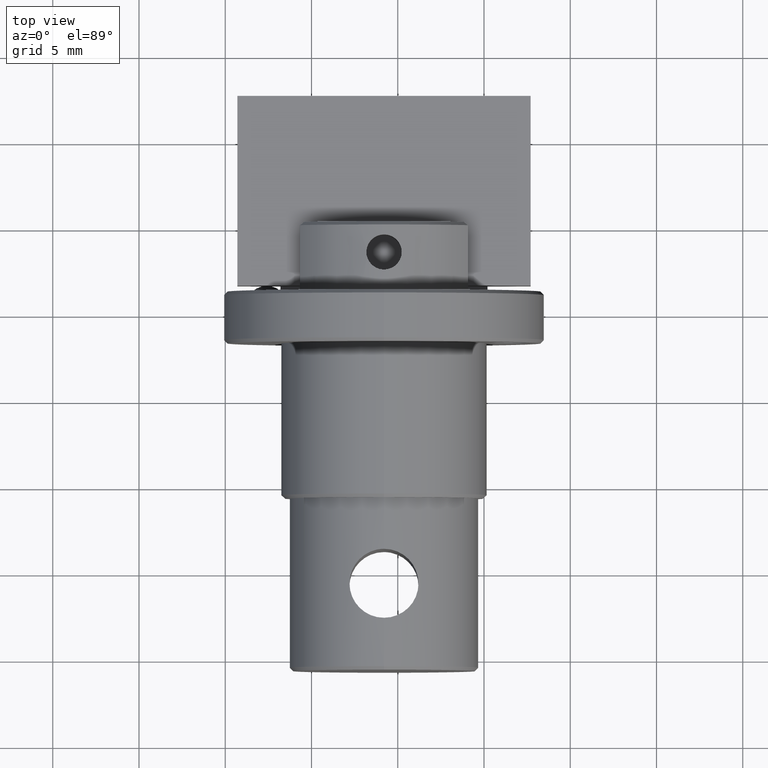
[diagram: clean part render]
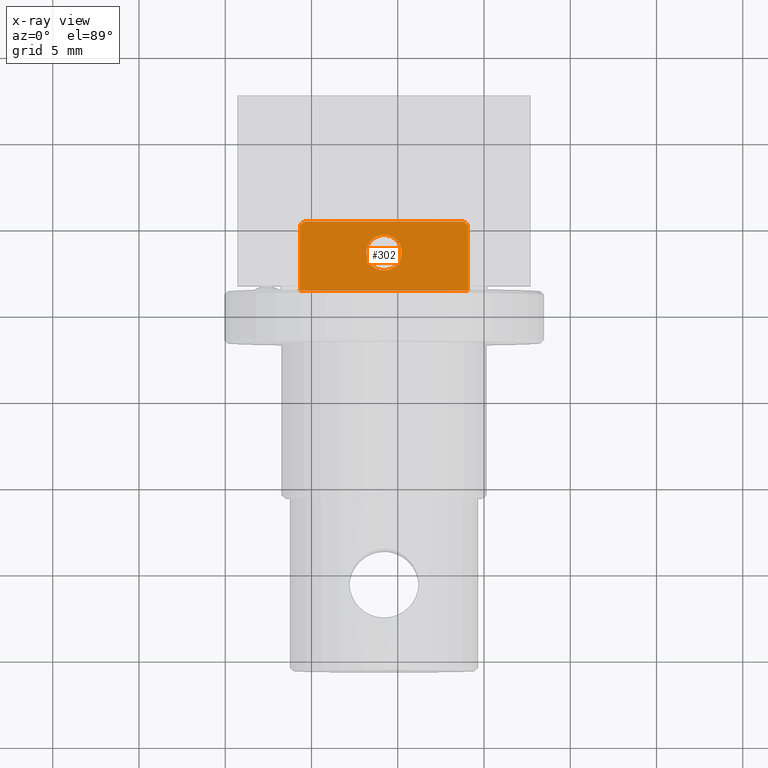
[diagram: x-ray — body ghosted, one internal face saturated and labeled with its STEP entity id]
A machine part, top view, then the same camera in x-ray: the body is ghosted and one INTERNAL B-rep face — a face not visible from any outside direction — is saturated and labeled: STEP entity #302.
In plain terms, the highlighted planar face has unit normal (-0, 0, 1).
Its self-contained STEP definition (entity closure, byte-faithful):
#104 = VERTEX_POINT ( 'NONE', #903 ) ;
#106 = EDGE_CURVE ( 'NONE', #104, #107, #1094, .T. ) ;
#107 = VERTEX_POINT ( 'NONE', #1095 ) ;
#288 = EDGE_CURVE ( 'NONE', #322, #405, #1508, .T. ) ;
#292 = EDGE_CURVE ( 'NONE', #293, #294, #2027, .T. ) ;
#293 = VERTEX_POINT ( 'NONE', #2023 ) ;
#294 = VERTEX_POINT ( 'NONE', #2130 ) ;
#300 = EDGE_CURVE ( 'NONE', #406, #293, #1991, .T. ) ;
#302 = ADVANCED_FACE ( 'NONE', ( #1994, #1993 ), #2136, .F. ) ;
#303 = ORIENTED_EDGE ( 'NONE', *, *, #304, .F. ) ;
#304 = EDGE_CURVE ( 'NONE', #107, #104, #2135, .T. ) ;
#305 = ORIENTED_EDGE ( 'NONE', *, *, #106, .F. ) ;
#306 = EDGE_LOOP ( 'NONE', ( #307, #308, #309, #310, #410, #411 ) ) ;
#307 = ORIENTED_EDGE ( 'NONE', *, *, #300, .T. ) ;
#308 = ORIENTED_EDGE ( 'NONE', *, *, #292, .T. ) ;
#309 = ORIENTED_EDGE ( 'NONE', *, *, #350, .T. ) ;
#310 = ORIENTED_EDGE ( 'NONE', *, *, #288, .F. ) ;
#321 = VERTEX_POINT ( 'NONE', #2091 ) ;
#322 = VERTEX_POINT ( 'NONE', #2090 ) ;
#324 = EDGE_CURVE ( 'NONE', #321, #322, #2088, .T. ) ;
#334 = EDGE_LOOP ( 'NONE', ( #303, #305 ) ) ;
#350 = EDGE_CURVE ( 'NONE', #294, #405, #1998, .T. ) ;
#405 = VERTEX_POINT ( 'NONE', #1724 ) ;
#406 = VERTEX_POINT ( 'NONE', #1729 ) ;
#408 = EDGE_CURVE ( 'NONE', #406, #321, #1567, .T. ) ;
#410 = ORIENTED_EDGE ( 'NONE', *, *, #324, .F. ) ;
#411 = ORIENTED_EDGE ( 'NONE', *, *, #408, .F. ) ;
#902 = CARTESIAN_POINT ( 'NONE',  ( -5.796632573378701600, 8.505878560888229200, 4.312838894319154900 ) ) ;
#903 = CARTESIAN_POINT ( 'NONE',  ( -4.771632573378713700, 8.505878560888229200, 4.312838894319154900 ) ) ;
#1091 = DIRECTION ( 'NONE',  ( -1.000000000000000000, 0.0000000000000000000, 0.0000000000000000000 ) ) ;
#1092 = DIRECTION ( 'NONE',  ( -0.0000000000000000000, -0.0000000000000000000, -1.000000000000000000 ) ) ;
#1093 = AXIS2_PLACEMENT_3D ( 'NONE', #902, #1092, #1091 ) ;
#1094 = CIRCLE ( 'NONE', #1093, 1.024999999999987700 ) ;
#1095 = CARTESIAN_POINT ( 'NONE',  ( -6.821632573378689600, 8.505878560888229200, 4.312838894319154900 ) ) ;
#1505 = DIRECTION ( 'NONE',  ( 0.0000000000000000000, 1.000000000000000000, 0.0000000000000000000 ) ) ;
#1506 = VECTOR ( 'NONE', #1505, 1000.000000000000000 ) ;
#1507 = CARTESIAN_POINT ( 'NONE',  ( -0.9232354009742179700, 10.30587856088823200, 4.312838894319156700 ) ) ;
#1508 = LINE ( 'NONE', #1507, #1506 ) ;
#1564 = DIRECTION ( 'NONE',  ( -0.0000000000000000000, -1.000000000000000000, -0.0000000000000000000 ) ) ;
#1565 = VECTOR ( 'NONE', #1564, 1000.000000000000000 ) ;
#1566 = CARTESIAN_POINT ( 'NONE',  ( -10.67002974578318600, 10.30587856088823200, 4.312838894319156700 ) ) ;
#1567 = LINE ( 'NONE', #1566, #1565 ) ;
#1724 = CARTESIAN_POINT ( 'NONE',  ( -0.9232354009742179700, 10.10587856088822900, 4.312838894319156700 ) ) ;
#1729 = CARTESIAN_POINT ( 'NONE',  ( -10.67002974578318600, 10.10587856088822900, 4.312838894319156700 ) ) ;
#1967 = CARTESIAN_POINT ( 'NONE',  ( -0.9232354009742179700, 10.10587856088822900, 4.312838894319156700 ) ) ;
#1968 = CARTESIAN_POINT ( 'NONE',  ( -1.005781163196899600, 10.17292494158993000, 4.312838894319156700 ) ) ;
#1969 = CARTESIAN_POINT ( 'NONE',  ( -1.088591285992608800, 10.23960738141596000, 4.312838894319156700 ) ) ;
#1970 = CARTESIAN_POINT ( 'NONE',  ( -1.171700141439831600, 10.30587856088823200, 4.312838894319156700 ) ) ;
#1984 = CARTESIAN_POINT ( 'NONE',  ( -10.42156500531757100, 10.30587856088823200, 4.312838894319156700 ) ) ;
#1985 = CARTESIAN_POINT ( 'NONE',  ( -10.50469470492796900, 10.23959076023574800, 4.312838894319156700 ) ) ;
#1986 = CARTESIAN_POINT ( 'NONE',  ( -10.58750385103739200, 10.17290880457227900, 4.312838894319156700 ) ) ;
#1987 = CARTESIAN_POINT ( 'NONE',  ( -10.67002974578318600, 10.10587856088822900, 4.312838894319156700 ) ) ;
#1991 = B_SPLINE_CURVE_WITH_KNOTS ( 'NONE', 3,
 ( #1987, #1986, #1985, #1984 ),
 .UNSPECIFIED., .F., .F.,
 ( 4, 4 ),
 ( 0.01065812098195801000, 0.01097707925149298900 ),
 .UNSPECIFIED. ) ;
#1993 = FACE_OUTER_BOUND ( 'NONE', #306, .T. ) ;
#1994 = FACE_BOUND ( 'NONE', #334, .T. ) ;
#1998 = B_SPLINE_CURVE_WITH_KNOTS ( 'NONE', 3,
 ( #1970, #1969, #1968, #1967 ),
 .UNSPECIFIED., .F., .F.,
 ( 4, 4 ),
 ( 0.02147899519127093400, 0.02179874392508105200 ),
 .UNSPECIFIED. ) ;
#2023 = CARTESIAN_POINT ( 'NONE',  ( -10.42156500531757100, 10.30587856088823200, 4.312838894319156700 ) ) ;
#2024 = DIRECTION ( 'NONE',  ( 1.000000000000000000, 0.0000000000000000000, 0.0000000000000000000 ) ) ;
#2025 = VECTOR ( 'NONE', #2024, 1000.000000000000000 ) ;
#2026 = CARTESIAN_POINT ( 'NONE',  ( -13.29663257337870200, 10.30587856088823200, 4.312838894319156700 ) ) ;
#2027 = LINE ( 'NONE', #2026, #2025 ) ;
#2085 = DIRECTION ( 'NONE',  ( 1.000000000000000000, 0.0000000000000000000, 0.0000000000000000000 ) ) ;
#2086 = VECTOR ( 'NONE', #2085, 1000.000000000000000 ) ;
#2087 = CARTESIAN_POINT ( 'NONE',  ( -13.29663257337870200, 6.305878560888230800, 4.312838894319156700 ) ) ;
#2088 = LINE ( 'NONE', #2087, #2086 ) ;
#2090 = CARTESIAN_POINT ( 'NONE',  ( -0.9232354009742187500, 6.305878560888230800, 4.312838894319156700 ) ) ;
#2091 = CARTESIAN_POINT ( 'NONE',  ( -10.67002974578318400, 6.305878560888230800, 4.312838894319156700 ) ) ;
#2106 = DIRECTION ( 'NONE',  ( -1.000000000000000000, 0.0000000000000000000, 0.0000000000000000000 ) ) ;
#2107 = DIRECTION ( 'NONE',  ( -0.0000000000000000000, -0.0000000000000000000, -1.000000000000000000 ) ) ;
#2108 = CARTESIAN_POINT ( 'NONE',  ( -5.796632573378701600, 8.505878560888229200, 4.312838894319154900 ) ) ;
#2109 = AXIS2_PLACEMENT_3D ( 'NONE', #2108, #2107, #2106 ) ;
#2130 = CARTESIAN_POINT ( 'NONE',  ( -1.171700141439831600, 10.30587856088823200, 4.312838894319156700 ) ) ;
#2131 = DIRECTION ( 'NONE',  ( 1.000000000000000000, 0.0000000000000000000, 0.0000000000000000000 ) ) ;
#2132 = DIRECTION ( 'NONE',  ( -0.0000000000000000000, 0.0000000000000000000, 1.000000000000000000 ) ) ;
#2133 = CARTESIAN_POINT ( 'NONE',  ( -13.29663257337870200, 6.305878560888230800, 4.312838894319156700 ) ) ;
#2134 = AXIS2_PLACEMENT_3D ( 'NONE', #2133, #2132, #2131 ) ;
#2135 = CIRCLE ( 'NONE', #2109, 1.024999999999987700 ) ;
#2136 = PLANE ( 'NONE',  #2134 ) ;